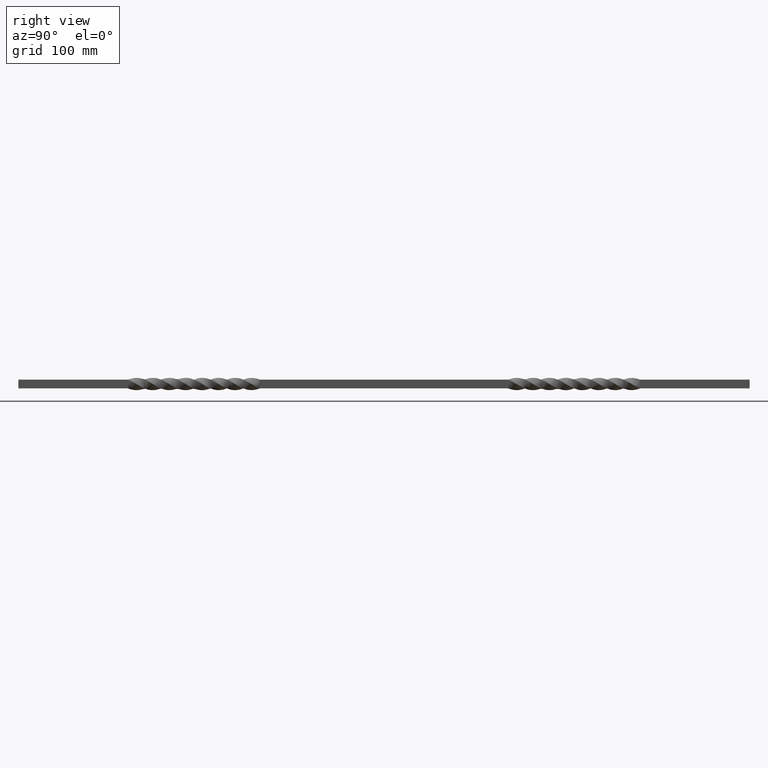
[diagram: clean part render]
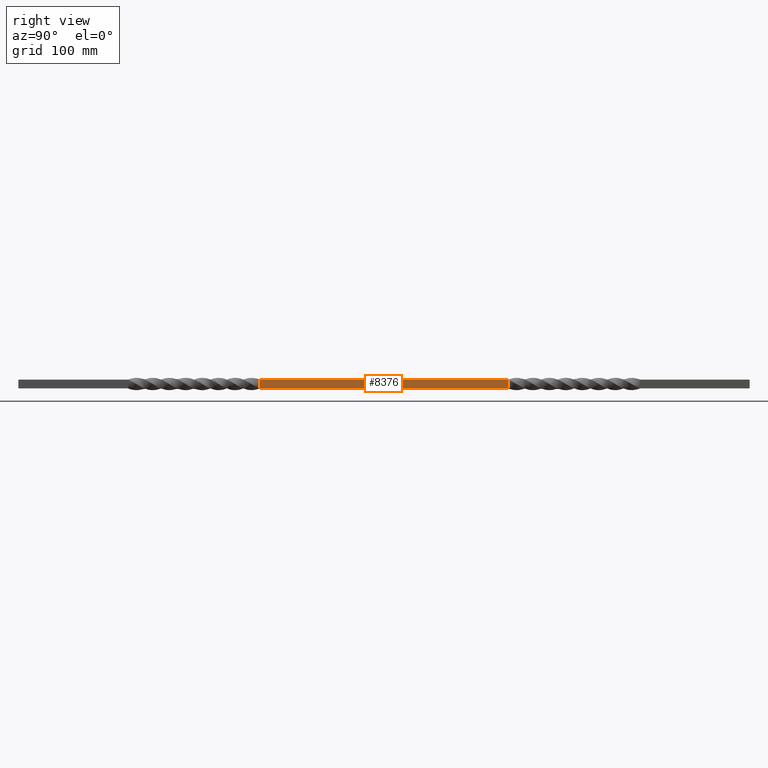
[diagram: same view with one face highlighted and labeled with its STEP entity id]
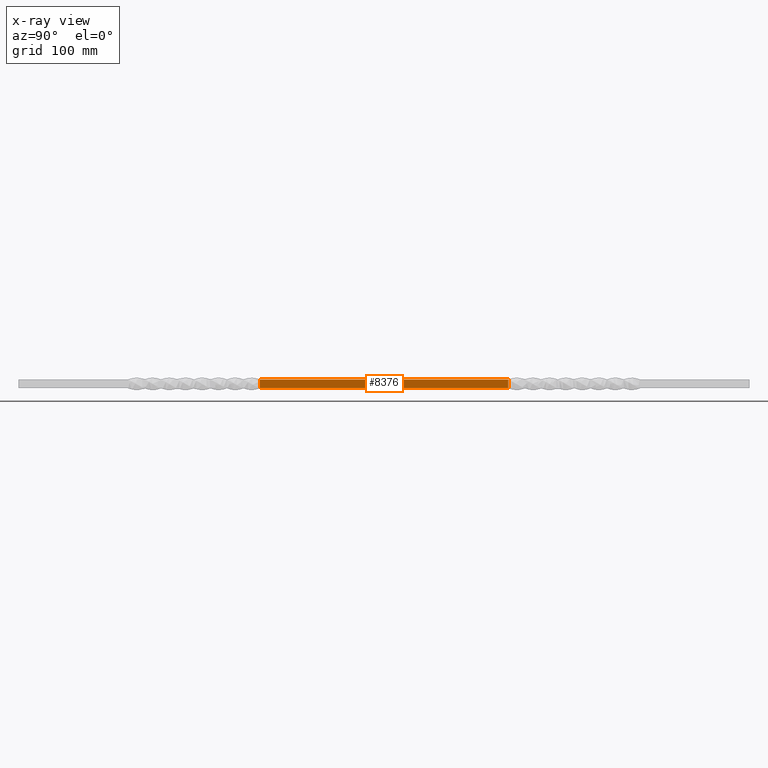
[diagram: x-ray of the same camera — body ghosted, the highlighted face saturated]
A machine part, right view. The second image highlights one B-rep face of the part: STEP entity #8376.
The next image is the same camera in x-ray: the body ghosted, the highlighted face saturated — about 0% of this face is hidden behind the body in this view.
In plain terms, the highlighted planar face has unit normal (-1, 0, -0).
Its self-contained STEP definition (entity closure, byte-faithful):
#1294 = EDGE_CURVE ( 'NONE', #10424, #6691, #7266, .T. ) ;
#1425 = VECTOR ( 'NONE', #10776, 1000.000000000000000 ) ;
#1581 = CARTESIAN_POINT ( 'NONE',  ( 6.000000006995133361, 619.9999999611588919, -5.999999997126574058 ) ) ;
#1733 = VECTOR ( 'NONE', #4164, 1000.000000000000000 ) ;
#1829 = ORIENTED_EDGE ( 'NONE', *, *, #9541, .T. ) ;
#1830 = VECTOR ( 'NONE', #1860, 1000.000000000000000 ) ;
#1860 = DIRECTION ( 'NONE',  ( 5.829278033894496882E-10, 0.000000000000000000, -1.000000000000000000 ) ) ;
#1949 = PLANE ( 'NONE',  #2891 ) ;
#2001 = DIRECTION ( 'NONE',  ( -1.000000000000000000, 0.000000000000000000, -5.829278033894496882E-10 ) ) ;
#2069 = FACE_OUTER_BOUND ( 'NONE', #10685, .T. ) ;
#2891 = AXIS2_PLACEMENT_3D ( 'NONE', #4188, #2001, #5159 ) ;
#3671 = CARTESIAN_POINT ( 'NONE',  ( 6.000000000000000000, 800.0019999863817475, 6.000000000000000000 ) ) ;
#3773 = LINE ( 'NONE', #6867, #9435 ) ;
#4164 = DIRECTION ( 'NONE',  ( -0.000000000000000000, 0.000000000000000000, -1.000000000000000000 ) ) ;
#4188 = CARTESIAN_POINT ( 'NONE',  ( 6.000000000000000000, 800.0019999863817475, 6.000000000000000000 ) ) ;
#4303 = ORIENTED_EDGE ( 'NONE', *, *, #7995, .T. ) ;
#5159 = DIRECTION ( 'NONE',  ( -5.829278033894496882E-10, 0.000000000000000000, 1.000000000000000000 ) ) ;
#5247 = LINE ( 'NONE', #3671, #1425 ) ;
#5619 = ORIENTED_EDGE ( 'NONE', *, *, #1294, .F. ) ;
#6331 = ORIENTED_EDGE ( 'NONE', *, *, #11602, .F. ) ;
#6691 = VERTEX_POINT ( 'NONE', #1581 ) ;
#6867 = CARTESIAN_POINT ( 'NONE',  ( 6.000000006995133361, 800.0019999863817475, -5.999999997126574058 ) ) ;
#6943 = CARTESIAN_POINT ( 'NONE',  ( 6.000000000000000000, 620.0000000000000000, 6.000000000000000000 ) ) ;
#7266 = LINE ( 'NONE', #6943, #1830 ) ;
#7995 = EDGE_CURVE ( 'NONE', #10424, #12290, #5247, .T. ) ;
#8376 = ADVANCED_FACE ( 'NONE', ( #2069 ), #1949, .F. ) ;
#9218 = CARTESIAN_POINT ( 'NONE',  ( 6.000000000000000000, 619.9999999999898819, 6.000000000000000000 ) ) ;
#9435 = VECTOR ( 'NONE', #11901, 1000.000000000000000 ) ;
#9541 = EDGE_CURVE ( 'NONE', #12290, #10599, #12192, .T. ) ;
#10424 = VERTEX_POINT ( 'NONE', #9218 ) ;
#10599 = VERTEX_POINT ( 'NONE', #10616 ) ;
#10616 = CARTESIAN_POINT ( 'NONE',  ( 6.000000006995133361, 279.9999999863826474, -5.999999997126574058 ) ) ;
#10685 = EDGE_LOOP ( 'NONE', ( #6331, #5619, #4303, #1829 ) ) ;
#10776 = DIRECTION ( 'NONE',  ( -0.000000000000000000, -1.000000000000000000, -0.000000000000000000 ) ) ;
#11602 = EDGE_CURVE ( 'NONE', #6691, #10599, #3773, .T. ) ;
#11901 = DIRECTION ( 'NONE',  ( -0.000000000000000000, -1.000000000000000000, -0.000000000000000000 ) ) ;
#12079 = CARTESIAN_POINT ( 'NONE',  ( 6.000000000000000000, 280.0000000000000000, 0.000000000000000000 ) ) ;
#12192 = LINE ( 'NONE', #12079, #1733 ) ;
#12290 = VERTEX_POINT ( 'NONE', #13027 ) ;
#13027 = CARTESIAN_POINT ( 'NONE',  ( 6.000000000000000000, 280.0000000000000000, 6.000000000000000000 ) ) ;